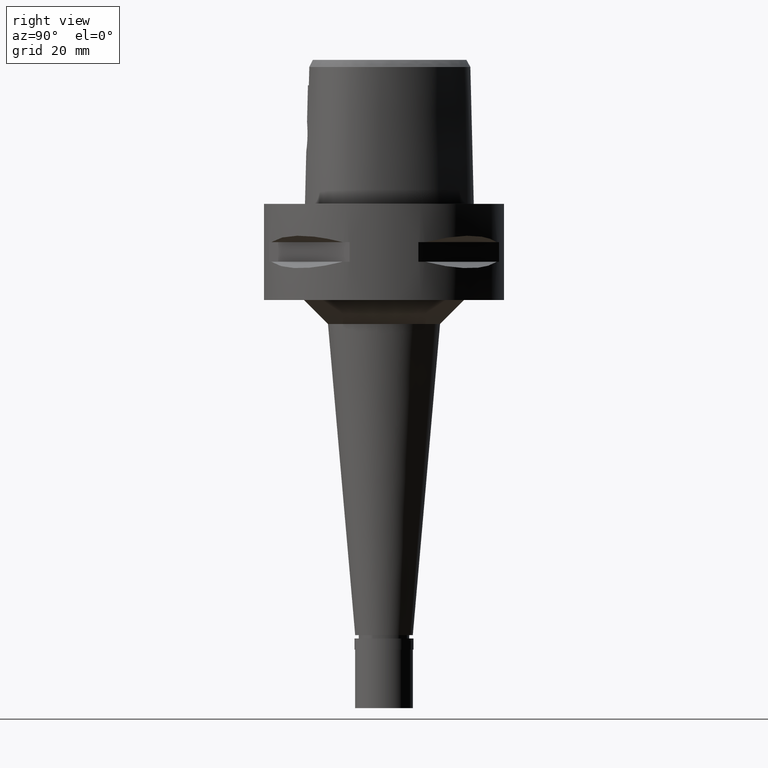
[diagram: clean part render]
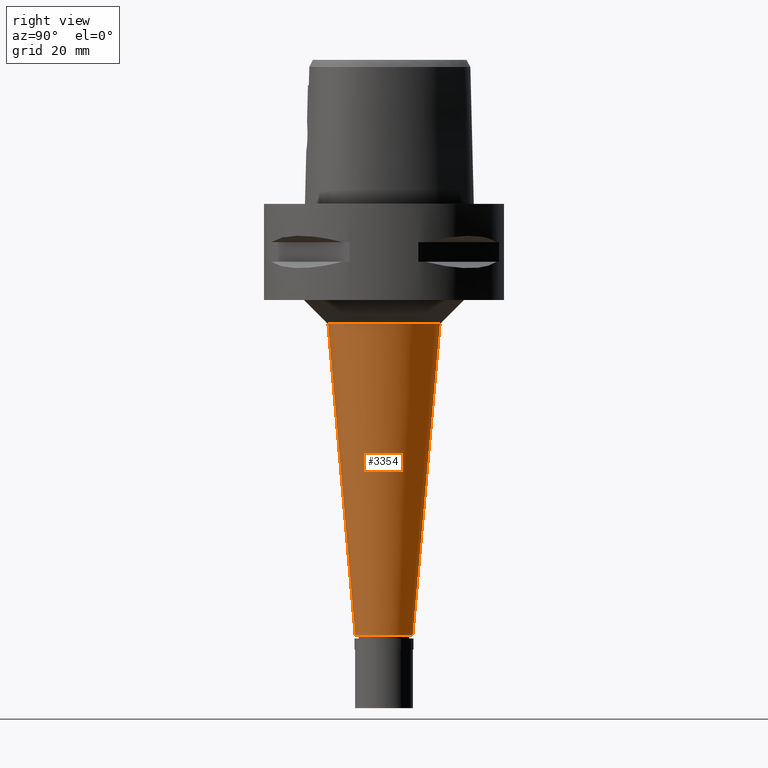
[diagram: same view with one face highlighted and labeled with its STEP entity id]
A machine part, right view. The second image highlights one B-rep face of the part: STEP entity #3354.
In plain terms, the highlighted conical surface has half-angle 5 deg.
Its self-contained STEP definition (entity closure, byte-faithful):
#97 = AXIS2_PLACEMENT_3D ( 'NONE', #3119, #4573, #2684 ) ;
#200 = CARTESIAN_POINT ( 'NONE',  ( 0.0000000000000000000, -6.000000000000000000, -89.80000000000001137 ) ) ;
#237 = CONICAL_SURFACE ( 'NONE', #1567, 8.834632698240000082, 0.08726646259969973729 ) ;
#428 = FACE_OUTER_BOUND ( 'NONE', #3078, .T. ) ;
#619 = VERTEX_POINT ( 'NONE', #200 ) ;
#636 = VERTEX_POINT ( 'NONE', #1588 ) ;
#805 = EDGE_CURVE ( 'NONE', #3607, #619, #4039, .T. ) ;
#1111 = CARTESIAN_POINT ( 'NONE',  ( 0.0000000000000000000, 0.0000000000000000000, -25.00000000000000000 ) ) ;
#1141 = CARTESIAN_POINT ( 'NONE',  ( 0.0000000000000000000, -11.66926539648000016, -25.00000000000000000 ) ) ;
#1538 = ORIENTED_EDGE ( 'NONE', *, *, #805, .T. ) ;
#1567 = AXIS2_PLACEMENT_3D ( 'NONE', #3054, #3775, #3703 ) ;
#1588 = CARTESIAN_POINT ( 'NONE',  ( 0.0000000000000000000, 11.66926539648000016, -25.00000000000000000 ) ) ;
#1636 = ORIENTED_EDGE ( 'NONE', *, *, #2641, .T. ) ;
#1883 = CIRCLE ( 'NONE', #4574, 11.66926539648000016 ) ;
#1904 = DIRECTION ( 'NONE',  ( 0.0000000000000000000, -1.000000000000000000, 0.0000000000000000000 ) ) ;
#2508 = CIRCLE ( 'NONE', #97, 6.000000000000000000 ) ;
#2584 = EDGE_CURVE ( 'NONE', #636, #4217, #4547, .T. ) ;
#2641 = EDGE_CURVE ( 'NONE', #619, #4217, #2508, .T. ) ;
#2684 = DIRECTION ( 'NONE',  ( 0.0000000000000000000, -1.000000000000000000, 0.0000000000000000000 ) ) ;
#2938 = CARTESIAN_POINT ( 'NONE',  ( 0.0000000000000000000, 6.000000000000000000, -89.80000000000001137 ) ) ;
#3054 = CARTESIAN_POINT ( 'NONE',  ( 0.0000000000000000000, 0.0000000000000000000, -57.39999999999999858 ) ) ;
#3078 = EDGE_LOOP ( 'NONE', ( #3628, #1538, #1636, #4704 ) ) ;
#3119 = CARTESIAN_POINT ( 'NONE',  ( 0.0000000000000000000, 0.0000000000000000000, -89.80000000000001137 ) ) ;
#3260 = DIRECTION ( 'NONE',  ( 0.0000000000000000000, 0.08715574274766389740, -0.9961946980917451011 ) ) ;
#3354 = ADVANCED_FACE ( 'NONE', ( #428 ), #237, .T. ) ;
#3607 = VERTEX_POINT ( 'NONE', #1141 ) ;
#3628 = ORIENTED_EDGE ( 'NONE', *, *, #4199, .F. ) ;
#3703 = DIRECTION ( 'NONE',  ( 0.0000000000000000000, 1.000000000000000000, 0.0000000000000000000 ) ) ;
#3775 = DIRECTION ( 'NONE',  ( 0.0000000000000000000, 0.0000000000000000000, 1.000000000000000000 ) ) ;
#4039 = LINE ( 'NONE', #4089, #4052 ) ;
#4052 = VECTOR ( 'NONE', #3260, 1000.000000000000114 ) ;
#4089 = CARTESIAN_POINT ( 'NONE',  ( 0.0000000000000000000, -11.66926539648000016, -25.00000000000000000 ) ) ;
#4092 = DIRECTION ( 'NONE',  ( 0.0000000000000000000, 0.0000000000000000000, 1.000000000000000000 ) ) ;
#4151 = CARTESIAN_POINT ( 'NONE',  ( 0.0000000000000000000, 11.66926539648000016, -25.00000000000000000 ) ) ;
#4199 = EDGE_CURVE ( 'NONE', #3607, #636, #1883, .T. ) ;
#4217 = VERTEX_POINT ( 'NONE', #2938 ) ;
#4224 = DIRECTION ( 'NONE',  ( 0.0000000000000000000, -0.08715574274766389740, -0.9961946980917451011 ) ) ;
#4425 = VECTOR ( 'NONE', #4224, 1000.000000000000114 ) ;
#4547 = LINE ( 'NONE', #4151, #4425 ) ;
#4573 = DIRECTION ( 'NONE',  ( 0.0000000000000000000, 0.0000000000000000000, 1.000000000000000000 ) ) ;
#4574 = AXIS2_PLACEMENT_3D ( 'NONE', #1111, #4092, #1904 ) ;
#4704 = ORIENTED_EDGE ( 'NONE', *, *, #2584, .F. ) ;